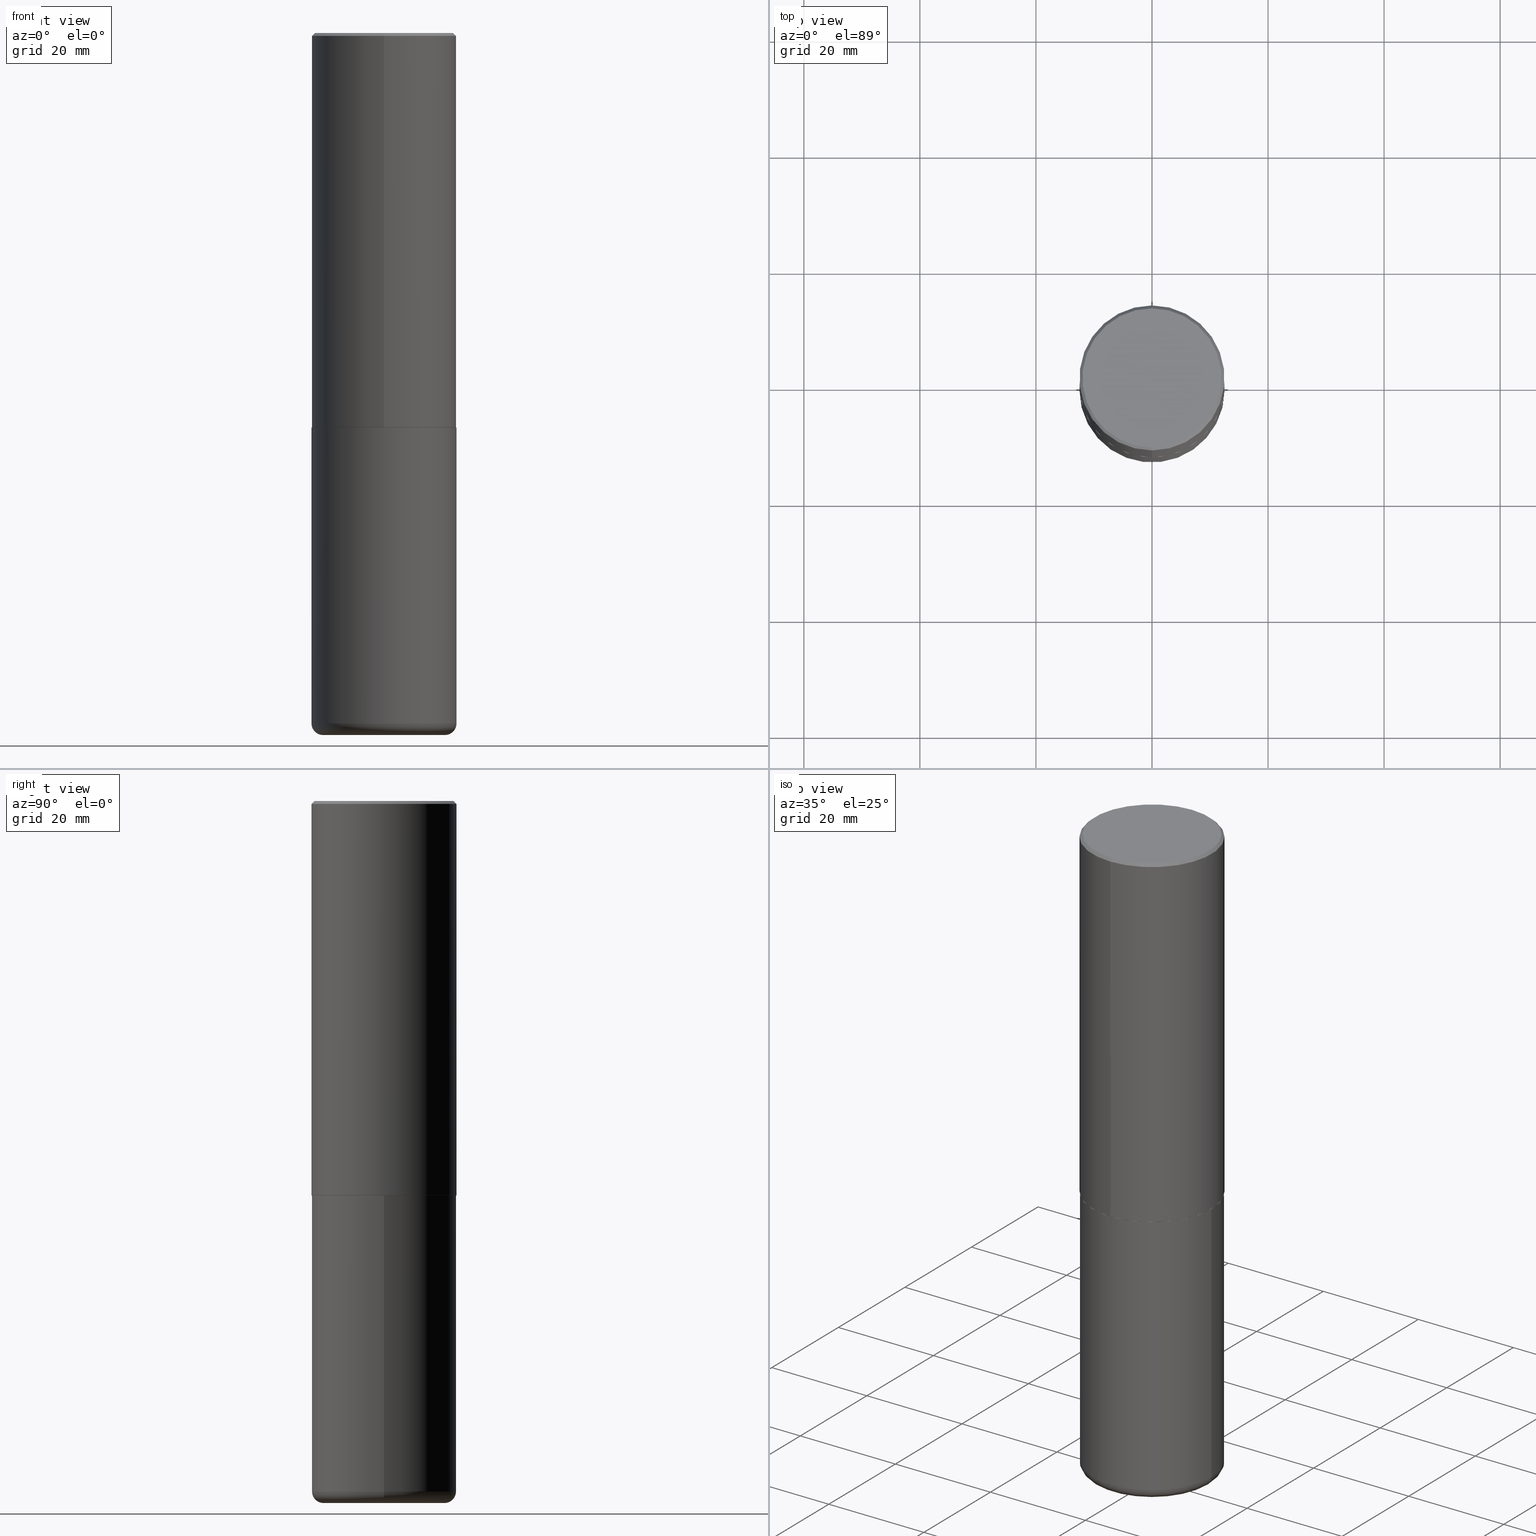
[diagram: canonical four-view strip — front | top / right | iso, engineering-drawing reading convention]
A machine part, canonical four-view strip (front | top / right | iso — engineering-drawing reading convention). The complete STEP part file that produces these views, byte-faithful:
ISO-10303-21;
HEADER;
FILE_DESCRIPTION (( 'STEP AP203' ),
    '1' );
FILE_NAME ('47144.STEP',
    '2024-03-05T23:27:42',
    ( '' ),
    ( '' ),
    'SwSTEP 2.0',
    'SolidWorks 2023',
    '' );
FILE_SCHEMA (( 'CONFIG_CONTROL_DESIGN' ));
ENDSEC;

DATA;
#1 = LINE ( 'NONE', #129, #92 ) ;
#2 = PERSON ( 'UNSPECIFIED', 'UNSPECIFIED', 'UNSPECIFIED', ('UNSPECIFIED'), ('UNSPECIFIED'), ('UNSPECIFIED') ) ;
#3 = DIRECTION ( 'NONE',  ( -2.445468806185136597E-29, 3.491481338843145583E-15, 1.000000000000000000 ) ) ;
#4 = VECTOR ( 'NONE', #287, 39.37007874015748143 ) ;
#5 = ORIENTED_EDGE ( 'NONE', *, *, #20, .T. ) ;
#6 = ADVANCED_FACE ( 'NONE', ( #90 ), #86, .T. ) ;
#7 = ORIENTED_EDGE ( 'NONE', *, *, #257, .F. ) ;
#8 = ORIENTED_EDGE ( 'NONE', *, *, #114, .F. ) ;
#9 = CLOSED_SHELL ( 'NONE', ( #153, #408, #75, #6, #69, #162, #299, #197 ) ) ;
#10 = AXIS2_PLACEMENT_3D ( 'NONE', #203, #330, #230 ) ;
#11 = DIRECTION ( 'NONE',  ( -6.982962677686265922E-15, -1.000000000000000000, 3.489119658767506053E-15 ) ) ;
#12 = APPROVAL ( #312, 'UNSPECIFIED' ) ;
#13 = ORIENTED_EDGE ( 'NONE', *, *, #227, .F. ) ;
#14 = MECHANICAL_CONTEXT ( 'NONE', #243, 'mechanical' ) ;
#15 = ORIENTED_EDGE ( 'NONE', *, *, #257, .T. ) ;
#16 = PERSON_AND_ORGANIZATION ( #2, #34 ) ;
#17 = CARTESIAN_POINT ( 'NONE',  ( 0.4134499999999999287, -1.924504513970340634E-14, -4.685099999999999376 ) ) ;
#18 = AXIS2_PLACEMENT_3D ( 'NONE', #94, #351, #228 ) ;
#19 = DIRECTION ( 'NONE',  ( -6.982962677686265922E-15, -1.000000000000000000, 3.486624039460257331E-15 ) ) ;
#20 = EDGE_CURVE ( 'NONE', #264, #209, #329, .T. ) ;
#21 = DATE_AND_TIME ( #310, #336 ) ;
#22 = LINE ( 'NONE', #91, #33 ) ;
#23 = PERSON_AND_ORGANIZATION_ROLE ( 'creator' ) ;
#24 = EDGE_LOOP ( 'NONE', ( #116, #372 ) ) ;
#25 = DATE_AND_TIME ( #380, #26 ) ;
#26 = LOCAL_TIME ( 18, 27, 42.00000000000000000, #147 ) ;
#27 = DIRECTION ( 'NONE',  ( 2.438088387897960049E-29, -3.491481338843145188E-15, -1.000000000000000000 ) ) ;
#28 = EDGE_CURVE ( 'NONE', #404, #135, #84, .T. ) ;
#29 = DIRECTION ( 'NONE',  ( 6.982962677686265922E-15, 1.000000000000000000, -3.489119658767506053E-15 ) ) ;
#30 = CARTESIAN_POINT ( 'NONE',  ( 3.493383360364598263E-15, 0.4911499999999905941, -2.677200000000000468 ) ) ;
#31 = EDGE_CURVE ( 'NONE', #202, #204, #22, .T. ) ;
#32 = DIRECTION ( 'NONE',  ( 1.000000000000000000, -6.982962677686265922E-15, 0.000000000000000000 ) ) ;
#33 = VECTOR ( 'NONE', #308, 39.37007874015748143 ) ;
#34 = ORGANIZATION ( 'UNSPECIFIED', 'UNSPECIFIED', '' ) ;
#35 = CARTESIAN_POINT ( 'NONE',  ( 6.551424198677227885E-29, -9.341071150452363547E-15, -2.677199999999999136 ) ) ;
#36 = DIRECTION ( 'NONE',  ( 1.000000000000000000, -6.982962677686261977E-15, 0.000000000000000000 ) ) ;
#37 = DIRECTION ( 'NONE',  ( -2.445468806185136597E-29, 3.491481338843145583E-15, 1.000000000000000000 ) ) ;
#38 = AXIS2_PLACEMENT_3D ( 'NONE', #64, #166, #130 ) ;
#39 = EDGE_CURVE ( 'NONE', #71, #264, #352, .T. ) ;
#40 = ORIENTED_EDGE ( 'NONE', *, *, #31, .T. ) ;
#41 = LINE ( 'NONE', #77, #406 ) ;
#42 = EDGE_LOOP ( 'NONE', ( #13, #309, #78, #181 ) ) ;
#43 = CC_DESIGN_PERSON_AND_ORGANIZATION_ASSIGNMENT ( #16, #159, ( #124 ) ) ;
#44 = DIRECTION ( 'NONE',  ( -2.447117958567619178E-29, 3.489119658767506053E-15, 1.000000000000000000 ) ) ;
#45 = ORIENTED_EDGE ( 'NONE', *, *, #185, .T. ) ;
#46 = AXIS2_PLACEMENT_3D ( 'NONE', #350, #413, #115 ) ;
#47 = LOCAL_TIME ( 18, 27, 42.00000000000000000, #82 ) ;
#48 = DIRECTION ( 'NONE',  ( 1.000000000000000000, 0.000000000000000000, 0.000000000000000000 ) ) ;
#49 = ORIENTED_EDGE ( 'NONE', *, *, #418, .T. ) ;
#50 = PERSON_AND_ORGANIZATION ( #2, #34 ) ;
#51 = DIRECTION ( 'NONE',  ( 2.447117958567619178E-29, -3.489119658767506053E-15, -1.000000000000000000 ) ) ;
#52 = CARTESIAN_POINT ( 'NONE',  ( -3.376394089603257868E-15, -0.4921499999999999764, -0.01999999999999839059 ) ) ;
#53 = EDGE_CURVE ( 'NONE', #204, #135, #412, .T. ) ;
#54 = CIRCLE ( 'NONE', #169, 0.4921500000000002539 ) ;
#55 = FACE_OUTER_BOUND ( 'NONE', #24, .T. ) ;
#56 = PERSON_AND_ORGANIZATION ( #2, #34 ) ;
#57 = CARTESIAN_POINT ( 'NONE',  ( 7.253733539357195705E-29, -2.292802777390881521E-14, -4.763799999999999812 ) ) ;
#58 = PERSON_AND_ORGANIZATION ( #2, #34 ) ;
#59 = FACE_OUTER_BOUND ( 'NONE', #384, .T. ) ;
#60 = AXIS2_PLACEMENT_3D ( 'NONE', #391, #414, #32 ) ;
#61 = CARTESIAN_POINT ( 'NONE',  ( 3.366835455046432084E-15, 0.4721499999999996255, -1.422271752159468089E-15 ) ) ;
#62 = DIRECTION ( 'NONE',  ( -2.445468806185136597E-29, 3.491481338843145583E-15, 1.000000000000000000 ) ) ;
#63 = EDGE_CURVE ( 'NONE', #135, #138, #97, .T. ) ;
#64 = CARTESIAN_POINT ( 'NONE',  ( 0.000000000000000000, 0.000000000000000000, 0.000000000000000000 ) ) ;
#65 = AXIS2_PLACEMENT_3D ( 'NONE', #290, #168, #99 ) ;
#66 = PLANE ( 'NONE',  #191 ) ;
#67 = CLOSED_SHELL ( 'NONE', ( #83, #355, #89, #178, #238, #131 ) ) ;
#68 = CARTESIAN_POINT ( 'NONE',  ( -5.508856381705404921E-45, 7.854569916190676353E-31, 2.251160947276086573E-16 ) ) ;
#69 = ADVANCED_FACE ( 'NONE', ( #407 ), #251, .T. ) ;
#70 = LINE ( 'NONE', #102, #353 ) ;
#71 = VERTEX_POINT ( 'NONE', #151 ) ;
#72 = AXIS2_PLACEMENT_3D ( 'NONE', #322, #320, #36 ) ;
#73 = CARTESIAN_POINT ( 'NONE',  ( -3.307789109625541747E-15, -0.4721499999999996255, 1.872503941614685503E-15 ) ) ;
#74 = ORIENTED_EDGE ( 'NONE', *, *, #127, .F. ) ;
#75 = ADVANCED_FACE ( 'NONE', ( #279 ), #405, .T. ) ;
#76 = ORIENTED_EDGE ( 'NONE', *, *, #332, .F. ) ;
#77 = CARTESIAN_POINT ( 'NONE',  ( 3.436665081823295777E-15, 0.4921499999999998098, -0.02000000000000182188 ) ) ;
#78 = ORIENTED_EDGE ( 'NONE', *, *, #63, .T. ) ;
#79 = APPROVAL_PERSON_ORGANIZATION ( #56, #221, #219 ) ;
#80 = PERSON_AND_ORGANIZATION_ROLE ( 'creator' ) ;
#81 = ORIENTED_EDGE ( 'NONE', *, *, #167, .F. ) ;
#82 = COORDINATED_UNIVERSAL_TIME_OFFSET ( 5, 0, .BEHIND. ) ;
#83 = ADVANCED_FACE ( 'NONE', ( #59 ), #409, .T. ) ;
#84 = LINE ( 'NONE', #52, #250 ) ;
#85 = CARTESIAN_POINT ( 'NONE',  ( 0.000000000000000000, 0.000000000000000000, 0.000000000000000000 ) ) ;
#86 = CONICAL_SURFACE ( 'NONE', #268, 0.4921499999999999209, 0.7853981633974466137 ) ;
#87 = APPROVAL_PERSON_ORGANIZATION ( #286, #321, #410 ) ;
#88 = FACE_OUTER_BOUND ( 'NONE', #376, .T. ) ;
#89 = ADVANCED_FACE ( 'NONE', ( #55 ), #316, .F. ) ;
#90 = FACE_OUTER_BOUND ( 'NONE', #338, .T. ) ;
#91 = CARTESIAN_POINT ( 'NONE',  ( -3.429682119145543892E-15, -0.4911500000000093014, -2.677199999999997360 ) ) ;
#92 = VECTOR ( 'NONE', #165, 39.37007874015748143 ) ;
#93 = AXIS2_PLACEMENT_3D ( 'NONE', #367, #400, #11 ) ;
#94 = CARTESIAN_POINT ( 'NONE',  ( 6.547009087918846705E-29, -9.347393840350866318E-15, -2.677199999999999580 ) ) ;
#95 = DIRECTION ( 'NONE',  ( -6.982962677686265922E-15, -1.000000000000000000, 3.337287582609300506E-15 ) ) ;
#96 = DIRECTION ( 'NONE',  ( -6.982962677686265922E-15, -1.000000000000000000, 3.337287582609300506E-15 ) ) ;
#97 = CIRCLE ( 'NONE', #126, 0.4921499999999999209 ) ;
#98 = FACE_OUTER_BOUND ( 'NONE', #222, .T. ) ;
#99 = DIRECTION ( 'NONE',  ( -6.982962677686265922E-15, -1.000000000000000000, 3.337287582609300506E-15 ) ) ;
#100 = CARTESIAN_POINT ( 'NONE',  ( -0.4921499999999999764, 3.496936074043332897E-15, -2.420853904668951509E-29 ) ) ;
#101 = EDGE_LOOP ( 'NONE', ( #111, #273 ) ) ;
#102 = CARTESIAN_POINT ( 'NONE',  ( 3.489830646685796970E-15, 0.4911499999999905941, -2.677200000000000468 ) ) ;
#103 = CC_DESIGN_PERSON_AND_ORGANIZATION_ASSIGNMENT ( #50, #80, ( #261 ) ) ;
#104 = EDGE_LOOP ( 'NONE', ( #368, #145, #74, #156 ) ) ;
#105 = AXIS2_PLACEMENT_3D ( 'NONE', #57, #188, #253 ) ;
#106 = DIRECTION ( 'NONE',  ( 1.000000000000000000, -6.982962677686263555E-15, 4.883557194083111219E-29 ) ) ;
#107 = ORIENTED_EDGE ( 'NONE', *, *, #53, .F. ) ;
#108 =( NAMED_UNIT ( * ) PLANE_ANGLE_UNIT ( ) SI_UNIT ( $, .RADIAN. ) );
#109 = ORIENTED_EDGE ( 'NONE', *, *, #63, .F. ) ;
#110 = APPROVAL_STATUS ( 'not_yet_approved' ) ;
#111 = ORIENTED_EDGE ( 'NONE', *, *, #327, .F. ) ;
#112 = AXIS2_PLACEMENT_3D ( 'NONE', #17, #281, #148 ) ;
#113 = AXIS2_PLACEMENT_3D ( 'NONE', #394, #37, #106 ) ;
#114 = EDGE_CURVE ( 'NONE', #143, #404, #260, .T. ) ;
#115 = DIRECTION ( 'NONE',  ( -6.982962677686265922E-15, -1.000000000000000000, 3.489119658767506053E-15 ) ) ;
#116 = ORIENTED_EDGE ( 'NONE', *, *, #271, .T. ) ;
#117 = DIRECTION ( 'NONE',  ( 2.447117958567619178E-29, -3.489119658767506053E-15, -1.000000000000000000 ) ) ;
#118 = CIRCLE ( 'NONE', #224, 0.4911499999999999755 ) ;
#119 = AXIS2_PLACEMENT_3D ( 'NONE', #207, #337, #48 ) ;
#120 = AXIS2_PLACEMENT_3D ( 'NONE', #266, #403, #396 ) ;
#121 = DATE_TIME_ROLE ( 'creation_date' ) ;
#122 = DIRECTION ( 'NONE',  ( 1.000000000000000000, -6.982962677686265922E-15, 0.000000000000000000 ) ) ;
#123 = DIRECTION ( 'NONE',  ( 6.982962677686265922E-15, 1.000000000000000000, -3.486624039460257331E-15 ) ) ;
#124 = PRODUCT ( '47144', '47144', '', ( #14 ) ) ;
#125 = CARTESIAN_POINT ( 'NONE',  ( 1.145726590385798145E-28, -1.635793922061402197E-14, -4.685099999999999376 ) ) ;
#126 = AXIS2_PLACEMENT_3D ( 'NONE', #277, #182, #19 ) ;
#127 = EDGE_CURVE ( 'NONE', #204, #174, #54, .T. ) ;
#128 = CYLINDRICAL_SURFACE ( 'NONE', #38, 0.4921499999999999764 ) ;
#129 = CARTESIAN_POINT ( 'NONE',  ( 3.496936074043333291E-15, 0.4921500000000000874, -1.717170240062428491E-15 ) ) ;
#130 = DIRECTION ( 'NONE',  ( 1.000000000000000000, -6.982962677686265922E-15, 4.876176775795935793E-29 ) ) ;
#131 = ADVANCED_FACE ( 'NONE', ( #88 ), #348, .T. ) ;
#132 = TOROIDAL_SURFACE ( 'NONE', #398, 0.4134499999999999287, 0.07870000000000024198 ) ;
#133 = DIRECTION ( 'NONE',  ( 1.000000000000000000, -6.982962677686265922E-15, 0.000000000000000000 ) ) ;
#134 = DIRECTION ( 'NONE',  ( -2.445468806185136877E-29, 3.491481338843145188E-15, 1.000000000000000000 ) ) ;
#135 = VERTEX_POINT ( 'NONE', #258 ) ;
#136 = EDGE_CURVE ( 'NONE', #244, #331, #323, .T. ) ;
#137 = CARTESIAN_POINT ( 'NONE',  ( 4.894235917135264524E-31, -6.978239317535049922E-17, -0.02000000000000010797 ) ) ;
#138 = VERTEX_POINT ( 'NONE', #225 ) ;
#139 =( LENGTH_UNIT ( ) NAMED_UNIT ( * ) SI_UNIT ( $, .METRE. ) );
#140 = EDGE_LOOP ( 'NONE', ( #377, #15, #370, #236 ) ) ;
#141 = AXIS2_PLACEMENT_3D ( 'NONE', #85, #283, #190 ) ;
#142 = DIRECTION ( 'NONE',  ( -6.982962677686265922E-15, -1.000000000000000000, 3.337287582609300506E-15 ) ) ;
#143 = VERTEX_POINT ( 'NONE', #61 ) ;
#144 = DIRECTION ( 'NONE',  ( -2.447117958567619178E-29, 3.489119658767506053E-15, 1.000000000000000000 ) ) ;
#145 = ORIENTED_EDGE ( 'NONE', *, *, #373, .T. ) ;
#146 = PRODUCT_RELATED_PRODUCT_CATEGORY ( 'detail', '', ( #124 ) ) ;
#147 = COORDINATED_UNIVERSAL_TIME_OFFSET ( 5, 0, .BEHIND. ) ;
#148 = DIRECTION ( 'NONE',  ( 1.000000000000000000, -6.982962677686273810E-15, 0.000000000000000000 ) ) ;
#149 = AXIS2_PLACEMENT_3D ( 'NONE', #68, #393, #229 ) ;
#150 = CC_DESIGN_APPROVAL ( #12, ( #390 ) ) ;
#151 = CARTESIAN_POINT ( 'NONE',  ( 0.4134499999999999287, -1.951982472107036283E-14, -4.763799999999999812 ) ) ;
#152 = APPROVAL_ROLE ( '' ) ;
#153 = ADVANCED_FACE ( 'NONE', ( #358 ), #416, .T. ) ;
#154 = CARTESIAN_POINT ( 'NONE',  ( 1.145726590385798145E-28, -1.635793922061402197E-14, -4.685099999999999376 ) ) ;
#155 = COORDINATED_UNIVERSAL_TIME_OFFSET ( 5, 0, .BEHIND. ) ;
#156 = ORIENTED_EDGE ( 'NONE', *, *, #31, .F. ) ;
#157 = CIRCLE ( 'NONE', #149, 0.4721499999999996255 ) ;
#158 = LOCAL_TIME ( 18, 27, 42.00000000000000000, #349 ) ;
#159 = PERSON_AND_ORGANIZATION_ROLE ( 'design_owner' ) ;
#160 = DIRECTION ( 'NONE',  ( -6.982962677686265922E-15, -1.000000000000000000, 3.489119658767506053E-15 ) ) ;
#161 = FACE_OUTER_BOUND ( 'NONE', #140, .T. ) ;
#162 = ADVANCED_FACE ( 'NONE', ( #196 ), #284, .T. ) ;
#163 = PLANE ( 'NONE',  #183 ) ;
#164 = CIRCLE ( 'NONE', #10, 0.4134499999999999287 ) ;
#165 = DIRECTION ( 'NONE',  ( -2.447117958567619178E-29, 3.489119658767506053E-15, 1.000000000000000000 ) ) ;
#166 = DIRECTION ( 'NONE',  ( -2.445468806185136597E-29, 3.491481338843145583E-15, 1.000000000000000000 ) ) ;
#167 = EDGE_CURVE ( 'NONE', #174, #138, #1, .T. ) ;
#168 = DIRECTION ( 'NONE',  ( -2.447117958567619178E-29, 3.489119658767506053E-15, 1.000000000000000000 ) ) ;
#169 = AXIS2_PLACEMENT_3D ( 'NONE', #187, #311, #381 ) ;
#170 = ORIENTED_EDGE ( 'NONE', *, *, #136, .F. ) ;
#171 = ORIENTED_EDGE ( 'NONE', *, *, #402, .T. ) ;
#172 = EDGE_CURVE ( 'NONE', #264, #331, #193, .T. ) ;
#173 = LENGTH_MEASURE_WITH_UNIT ( LENGTH_MEASURE( 0.02539999999999999897 ), #139 );
#174 = VERTEX_POINT ( 'NONE', #354 ) ;
#175 = AXIS2_PLACEMENT_3D ( 'NONE', #154, #342, #122 ) ;
#176 = VERTEX_POINT ( 'NONE', #319 ) ;
#177 = DIRECTION ( 'NONE',  ( -6.982962677686265922E-15, -1.000000000000000000, 3.486624039460257331E-15 ) ) ;
#178 = ADVANCED_FACE ( 'NONE', ( #415 ), #128, .T. ) ;
#179 = ORIENTED_EDGE ( 'NONE', *, *, #127, .T. ) ;
#180 = PERSON_AND_ORGANIZATION ( #2, #34 ) ;
#181 = ORIENTED_EDGE ( 'NONE', *, *, #402, .F. ) ;
#182 = DIRECTION ( 'NONE',  ( -2.447117958567619178E-29, 3.489119658767506053E-15, 1.000000000000000000 ) ) ;
#183 = AXIS2_PLACEMENT_3D ( 'NONE', #417, #328, #334 ) ;
#184 = AXIS2_PLACEMENT_3D ( 'NONE', #137, #44, #177 ) ;
#185 = EDGE_CURVE ( 'NONE', #209, #264, #223, .T. ) ;
#186 = APPLICATION_PROTOCOL_DEFINITION ( 'international standard', 'config_control_design', 1994, #265 ) ;
#187 = CARTESIAN_POINT ( 'NONE',  ( 6.548977080718662055E-29, -9.337582030793598206E-15, -2.676199999999999690 ) ) ;
#188 = DIRECTION ( 'NONE',  ( 2.438088387897960049E-29, -3.491481338843145188E-15, -1.000000000000000000 ) ) ;
#189 = CALENDAR_DATE ( 2024, 5, 3 ) ;
#190 = DIRECTION ( 'NONE',  ( 1.000000000000000000, -6.982962677686265922E-15, 4.876176775795935793E-29 ) ) ;
#191 = AXIS2_PLACEMENT_3D ( 'NONE', #194, #256, #29 ) ;
#192 = PRODUCT_DEFINITION_SHAPE ( 'NONE', 'NONE',  #390 ) ;
#193 = LINE ( 'NONE', #259, #343 ) ;
#194 = CARTESIAN_POINT ( 'NONE',  ( 3.297005828269567997E-15, 0.4721499999999996255, -1.534829799523272196E-15 ) ) ;
#195 = DESIGN_CONTEXT ( 'detailed design', #265, 'design' ) ;
#196 = FACE_OUTER_BOUND ( 'NONE', #298, .T. ) ;
#197 = ADVANCED_FACE ( 'NONE', ( #98 ), #66, .F. ) ;
#198 = CIRCLE ( 'NONE', #392, 0.4911499999999999755 ) ;
#199 = CARTESIAN_POINT ( 'NONE',  ( 6.551424198677227885E-29, -9.341071150452363547E-15, -2.677199999999999136 ) ) ;
#200 = ORIENTED_EDGE ( 'NONE', *, *, #114, .T. ) ;
#201 = DIRECTION ( 'NONE',  ( 5.024295867790635654E-15, 0.7071067811869121700, 0.7071067811861828645 ) ) ;
#202 = VERTEX_POINT ( 'NONE', #388 ) ;
#203 = CARTESIAN_POINT ( 'NONE',  ( 1.164972429890475522E-28, -1.663271880198097847E-14, -4.763799999999999812 ) ) ;
#204 = VERTEX_POINT ( 'NONE', #254 ) ;
#205 = APPLICATION_PROTOCOL_DEFINITION ( 'international standard', 'config_control_design', 1994, #243 ) ;
#206 = ORIENTED_EDGE ( 'NONE', *, *, #20, .F. ) ;
#207 = CARTESIAN_POINT ( 'NONE',  ( 0.000000000000000000, 0.000000000000000000, 0.000000000000000000 ) ) ;
#208 = AXIS2_PLACEMENT_3D ( 'NONE', #247, #27, #249 ) ;
#209 = VERTEX_POINT ( 'NONE', #262 ) ;
#210 = DATE_AND_TIME ( #341, #158 ) ;
#211 = ORIENTED_EDGE ( 'NONE', *, *, #332, .T. ) ;
#212 = APPROVAL_STATUS ( 'not_yet_approved' ) ;
#213 = DIRECTION ( 'NONE',  ( -4.851104656540954809E-15, -0.7071067811865486830, -0.7071067811865462405 ) ) ;
#214 = CARTESIAN_POINT ( 'NONE',  ( -5.508856381705404921E-45, 7.854569916190676353E-31, 2.251160947276086573E-16 ) ) ;
#215 = AXIS2_PLACEMENT_3D ( 'NONE', #411, #117, #123 ) ;
#216 =( GEOMETRIC_REPRESENTATION_CONTEXT ( 3 ) GLOBAL_UNCERTAINTY_ASSIGNED_CONTEXT ( ( #288 ) ) GLOBAL_UNIT_ASSIGNED_CONTEXT ( ( #303, #108, #269 ) ) REPRESENTATION_CONTEXT ( 'NONE', 'WORKASPACE' ) );
#217 = PERSON_AND_ORGANIZATION_ROLE ( 'classification_officer' ) ;
#218 = CARTESIAN_POINT ( 'NONE',  ( 4.894235917135264524E-31, -6.978239317535049922E-17, -0.02000000000000010797 ) ) ;
#219 = APPROVAL_ROLE ( '' ) ;
#220 = CARTESIAN_POINT ( 'NONE',  ( -3.436665081823296565E-15, -0.4921500000000000874, 1.717170240062428491E-15 ) ) ;
#221 = APPROVAL ( #212, 'UNSPECIFIED' ) ;
#222 = EDGE_LOOP ( 'NONE', ( #200, #241 ) ) ;
#223 = CIRCLE ( 'NONE', #60, 0.4921499999999999764 ) ;
#224 = AXIS2_PLACEMENT_3D ( 'NONE', #371, #144, #142 ) ;
#225 = CARTESIAN_POINT ( 'NONE',  ( 3.436665081823295777E-15, 0.4921499999999998098, -0.02000000000000182188 ) ) ;
#226 = DIRECTION ( 'NONE',  ( 1.000000000000000000, -6.982962677686263555E-15, 4.883557194083111219E-29 ) ) ;
#227 = EDGE_CURVE ( 'NONE', #404, #143, #157, .T. ) ;
#228 = DIRECTION ( 'NONE',  ( 1.000000000000000000, -6.982962677686265922E-15, 0.000000000000000000 ) ) ;
#229 = DIRECTION ( 'NONE',  ( -6.982962677686265922E-15, -1.000000000000000000, 3.489119658767506053E-15 ) ) ;
#230 = DIRECTION ( 'NONE',  ( 1.000000000000000000, -6.982962677686261977E-15, 0.000000000000000000 ) ) ;
#231 = CYLINDRICAL_SURFACE ( 'NONE', #93, 0.4921500000000000874 ) ;
#232 = EDGE_CURVE ( 'NONE', #272, #202, #198, .T. ) ;
#233 = ORIENTED_EDGE ( 'NONE', *, *, #373, .F. ) ;
#234 = FACE_OUTER_BOUND ( 'NONE', #401, .T. ) ;
#235 = SECURITY_CLASSIFICATION ( '', '', #248 ) ;
#236 = ORIENTED_EDGE ( 'NONE', *, *, #185, .F. ) ;
#237 = ORIENTED_EDGE ( 'NONE', *, *, #167, .T. ) ;
#238 = ADVANCED_FACE ( 'NONE', ( #161 ), #132, .T. ) ;
#239 = ORIENTED_EDGE ( 'NONE', *, *, #172, .T. ) ;
#240 = PERSON_AND_ORGANIZATION ( #2, #34 ) ;
#241 = ORIENTED_EDGE ( 'NONE', *, *, #227, .T. ) ;
#242 = PERSON_AND_ORGANIZATION ( #2, #34 ) ;
#243 = APPLICATION_CONTEXT ( 'configuration controlled 3d designs of mechanical parts and assemblies' ) ;
#244 = VERTEX_POINT ( 'NONE', #389 ) ;
#245 = COORDINATED_UNIVERSAL_TIME_OFFSET ( 5, 0, .BEHIND. ) ;
#246 = CC_DESIGN_PERSON_AND_ORGANIZATION_ASSIGNMENT ( #240, #374, ( #261 ) ) ;
#247 = CARTESIAN_POINT ( 'NONE',  ( 6.547009087918846705E-29, -9.347393840350866318E-15, -2.677199999999999580 ) ) ;
#248 = SECURITY_CLASSIFICATION_LEVEL ( 'unclassified' ) ;
#249 = DIRECTION ( 'NONE',  ( -1.000000000000000000, 6.982962677686265922E-15, -4.876176775795935793E-29 ) ) ;
#250 = VECTOR ( 'NONE', #213, 39.37007874015748854 ) ;
#251 = CYLINDRICAL_SURFACE ( 'NONE', #46, 0.4921500000000000874 ) ;
#252 = EDGE_CURVE ( 'NONE', #176, #209, #296, .T. ) ;
#253 = DIRECTION ( 'NONE',  ( -1.000000000000000000, 6.982962677686265922E-15, -4.876176775795935793E-29 ) ) ;
#254 = CARTESIAN_POINT ( 'NONE',  ( -3.436665081823232273E-15, -0.4921500000000095798, -2.676199999999997914 ) ) ;
#255 = AXIS2_PLACEMENT_3D ( 'NONE', #362, #325, #326 ) ;
#256 = DIRECTION ( 'NONE',  ( 2.447117958567618897E-29, -3.489119658767506053E-15, -1.000000000000000000 ) ) ;
#257 = EDGE_CURVE ( 'NONE', #176, #71, #387, .T. ) ;
#258 = CARTESIAN_POINT ( 'NONE',  ( -3.376394089603257868E-15, -0.4921499999999999764, -0.01999999999999839059 ) ) ;
#259 = CARTESIAN_POINT ( 'NONE',  ( 0.4921499999999999764, -3.436665081823295777E-15, 2.399810400207969603E-29 ) ) ;
#260 = CIRCLE ( 'NONE', #302, 0.4721499999999996255 ) ;
#261 = PRODUCT_DEFINITION_FORMATION_WITH_SPECIFIED_SOURCE ( 'ANY', '', #124, .NOT_KNOWN. ) ;
#262 = CARTESIAN_POINT ( 'NONE',  ( -0.4921500000000000874, -1.286100314657068829E-14, -4.685099999999999376 ) ) ;
#263 = LINE ( 'NONE', #100, #304 ) ;
#264 = VERTEX_POINT ( 'NONE', #294 ) ;
#265 = APPLICATION_CONTEXT ( 'configuration controlled 3d designs of mechanical parts and assemblies' ) ;
#266 = CARTESIAN_POINT ( 'NONE',  ( 6.548977080718662055E-29, -9.337582030793598206E-15, -2.676199999999999690 ) ) ;
#267 = EDGE_LOOP ( 'NONE', ( #49, #335, #206, #306 ) ) ;
#268 = AXIS2_PLACEMENT_3D ( 'NONE', #218, #51, #383 ) ;
#269 =( NAMED_UNIT ( * ) SI_UNIT ( $, .STERADIAN. ) SOLID_ANGLE_UNIT ( ) );
#270 = APPROVAL_PERSON_ORGANIZATION ( #58, #12, #152 ) ;
#271 = EDGE_CURVE ( 'NONE', #331, #244, #365, .T. ) ;
#272 = VERTEX_POINT ( 'NONE', #30 ) ;
#273 = ORIENTED_EDGE ( 'NONE', *, *, #232, .F. ) ;
#274 = CARTESIAN_POINT ( 'NONE',  ( 0.4921499999999999764, -1.278405892217416209E-14, -2.677199999999999580 ) ) ;
#275 = EDGE_LOOP ( 'NONE', ( #76, #45, #239, #170 ) ) ;
#276 = APPROVAL_DATE_TIME ( #25, #12 ) ;
#277 = CARTESIAN_POINT ( 'NONE',  ( 4.894235917135264524E-31, -6.978239317535049922E-17, -0.02000000000000010797 ) ) ;
#278 = CIRCLE ( 'NONE', #120, 0.4921500000000002539 ) ;
#279 = FACE_OUTER_BOUND ( 'NONE', #42, .T. ) ;
#280 = APPROVAL_DATE_TIME ( #282, #321 ) ;
#281 = DIRECTION ( 'NONE',  ( -6.982962677686266711E-15, -1.000000000000000000, 3.491481338843145583E-15 ) ) ;
#282 = DATE_AND_TIME ( #189, #324 ) ;
#283 = DIRECTION ( 'NONE',  ( -2.445468806185136597E-29, 3.491481338843145583E-15, 1.000000000000000000 ) ) ;
#284 = CONICAL_SURFACE ( 'NONE', #65, 0.4911499999999999755, 0.7853981633979605359 ) ;
#285 = TOROIDAL_SURFACE ( 'NONE', #113, 0.4134499999999999287, 0.07870000000000024198 ) ;
#286 = PERSON_AND_ORGANIZATION ( #2, #34 ) ;
#287 = DIRECTION ( 'NONE',  ( -2.447117958567619178E-29, 3.489119658767506053E-15, 1.000000000000000000 ) ) ;
#288 = UNCERTAINTY_MEASURE_WITH_UNIT (LENGTH_MEASURE( 1.000000000000000082E-05 ), #303, 'distance_accuracy_value', 'NONE');
#289 = DIRECTION ( 'NONE',  ( -2.447117958567619178E-29, 3.489119658767506053E-15, 1.000000000000000000 ) ) ;
#290 = CARTESIAN_POINT ( 'NONE',  ( 6.551424198677227885E-29, -9.341071150452363547E-15, -2.677199999999999136 ) ) ;
#291 = FACE_OUTER_BOUND ( 'NONE', #101, .T. ) ;
#292 = ADVANCED_BREP_SHAPE_REPRESENTATION ( '47144', ( #356, #366, #119 ), #216 ) ;
#293 = DIRECTION ( 'NONE',  ( -2.447117958567619178E-29, 3.489119658767506053E-15, 1.000000000000000000 ) ) ;
#294 = CARTESIAN_POINT ( 'NONE',  ( 0.4921500000000000874, -1.979460430243731302E-14, -4.685099999999999376 ) ) ;
#295 = CC_DESIGN_PERSON_AND_ORGANIZATION_ASSIGNMENT ( #180, #23, ( #390 ) ) ;
#296 = CIRCLE ( 'NONE', #255, 0.07870000000000024198 ) ;
#297 = ORIENTED_EDGE ( 'NONE', *, *, #385, .F. ) ;
#298 = EDGE_LOOP ( 'NONE', ( #233, #378, #40, #297 ) ) ;
#299 = ADVANCED_FACE ( 'NONE', ( #291 ), #163, .F. ) ;
#300 = ORIENTED_EDGE ( 'NONE', *, *, #28, .F. ) ;
#301 = AXIS2_PLACEMENT_3D ( 'NONE', #386, #3, #133 ) ;
#302 = AXIS2_PLACEMENT_3D ( 'NONE', #214, #344, #160 ) ;
#303 =( CONVERSION_BASED_UNIT ( 'INCH', #173 ) LENGTH_UNIT ( ) NAMED_UNIT ( #375 ) );
#304 = VECTOR ( 'NONE', #134, 39.37007874015748143 ) ;
#305 = EDGE_LOOP ( 'NONE', ( #81, #397, #340, #314 ) ) ;
#306 = ORIENTED_EDGE ( 'NONE', *, *, #39, .F. ) ;
#307 = APPROVAL_DATE_TIME ( #210, #221 ) ;
#308 = DIRECTION ( 'NONE',  ( -4.937700262167077130E-15, -0.7071067811869072850, 0.7071067811861877495 ) ) ;
#309 = ORIENTED_EDGE ( 'NONE', *, *, #28, .T. ) ;
#310 = CALENDAR_DATE ( 2024, 5, 3 ) ;
#311 = DIRECTION ( 'NONE',  ( -2.447117958567619178E-29, 3.489119658767506053E-15, 1.000000000000000000 ) ) ;
#312 = APPROVAL_STATUS ( 'not_yet_approved' ) ;
#313 = CC_DESIGN_PERSON_AND_ORGANIZATION_ASSIGNMENT ( #242, #217, ( #235 ) ) ;
#314 = ORIENTED_EDGE ( 'NONE', *, *, #346, .F. ) ;
#315 = DATE_TIME_ROLE ( 'classification_date' ) ;
#316 = PLANE ( 'NONE',  #208 ) ;
#317 = AXIS2_PLACEMENT_3D ( 'NONE', #35, #293, #96 ) ;
#318 = CC_DESIGN_APPROVAL ( #221, ( #235 ) ) ;
#319 = CARTESIAN_POINT ( 'NONE',  ( -0.4134499999999999287, -1.327799150377576435E-14, -4.763799999999999812 ) ) ;
#320 = DIRECTION ( 'NONE',  ( -2.445468806185136597E-29, 3.491481338843145583E-15, 1.000000000000000000 ) ) ;
#321 = APPROVAL ( #110, 'UNSPECIFIED' ) ;
#322 = CARTESIAN_POINT ( 'NONE',  ( 1.164972429890475522E-28, -1.663271880198097847E-14, -4.763799999999999812 ) ) ;
#323 = CIRCLE ( 'NONE', #18, 0.4921499999999999764 ) ;
#324 = LOCAL_TIME ( 18, 27, 42.00000000000000000, #245 ) ;
#325 = DIRECTION ( 'NONE',  ( 7.105427357601001859E-15, 1.000000000000000000, -3.491481338843145583E-15 ) ) ;
#326 = DIRECTION ( 'NONE',  ( -1.000000000000000000, 7.105427357600995548E-15, 0.000000000000000000 ) ) ;
#327 = EDGE_CURVE ( 'NONE', #202, #272, #118, .T. ) ;
#328 = DIRECTION ( 'NONE',  ( -2.447117958567618897E-29, 3.489119658767506053E-15, 1.000000000000000000 ) ) ;
#329 = CIRCLE ( 'NONE', #175, 0.4921499999999999764 ) ;
#330 = DIRECTION ( 'NONE',  ( -2.445468806185136597E-29, 3.491481338843145583E-15, 1.000000000000000000 ) ) ;
#331 = VERTEX_POINT ( 'NONE', #274 ) ;
#332 = EDGE_CURVE ( 'NONE', #209, #244, #263, .T. ) ;
#333 = ORIENTED_EDGE ( 'NONE', *, *, #172, .F. ) ;
#334 = DIRECTION ( 'NONE',  ( -6.982962677686265922E-15, -1.000000000000000000, 3.489119658767506053E-15 ) ) ;
#335 = ORIENTED_EDGE ( 'NONE', *, *, #252, .T. ) ;
#336 = LOCAL_TIME ( 18, 27, 42.00000000000000000, #155 ) ;
#337 = DIRECTION ( 'NONE',  ( 0.000000000000000000, 0.000000000000000000, 1.000000000000000000 ) ) ;
#338 = EDGE_LOOP ( 'NONE', ( #300, #8, #171, #399 ) ) ;
#339 = SHAPE_DEFINITION_REPRESENTATION ( #192, #292 ) ;
#340 = ORIENTED_EDGE ( 'NONE', *, *, #53, .T. ) ;
#341 = CALENDAR_DATE ( 2024, 5, 3 ) ;
#342 = DIRECTION ( 'NONE',  ( -2.445468806185136597E-29, 3.491481338843145583E-15, 1.000000000000000000 ) ) ;
#343 = VECTOR ( 'NONE', #357, 39.37007874015748143 ) ;
#344 = DIRECTION ( 'NONE',  ( -2.447117958567619178E-29, 3.489119658767506053E-15, 1.000000000000000000 ) ) ;
#345 = CC_DESIGN_SECURITY_CLASSIFICATION ( #235, ( #261 ) ) ;
#346 = EDGE_CURVE ( 'NONE', #138, #135, #360, .T. ) ;
#347 = DATE_AND_TIME ( #382, #47 ) ;
#348 = PLANE ( 'NONE',  #105 ) ;
#349 = COORDINATED_UNIVERSAL_TIME_OFFSET ( 5, 0, .BEHIND. ) ;
#350 = CARTESIAN_POINT ( 'NONE',  ( 0.000000000000000000, 0.000000000000000000, 0.000000000000000000 ) ) ;
#351 = DIRECTION ( 'NONE',  ( -2.445468806185136597E-29, 3.491481338843145583E-15, 1.000000000000000000 ) ) ;
#352 = CIRCLE ( 'NONE', #112, 0.07870000000000024198 ) ;
#353 = VECTOR ( 'NONE', #201, 39.37007874015748143 ) ;
#354 = CARTESIAN_POINT ( 'NONE',  ( 3.496936074043367212E-15, 0.4921499999999909281, -2.676200000000001467 ) ) ;
#355 = ADVANCED_FACE ( 'NONE', ( #369 ), #285, .T. ) ;
#356 = MANIFOLD_SOLID_BREP ( 'Body-Move/Copy2[1]', #67 ) ;
#357 = DIRECTION ( 'NONE',  ( -2.445468806185136877E-29, 3.491481338843145188E-15, 1.000000000000000000 ) ) ;
#358 = FACE_OUTER_BOUND ( 'NONE', #104, .T. ) ;
#359 = CC_DESIGN_APPROVAL ( #321, ( #261 ) ) ;
#360 = CIRCLE ( 'NONE', #184, 0.4921499999999999209 ) ;
#361 = CC_DESIGN_DATE_AND_TIME_ASSIGNMENT ( #347, #315, ( #235 ) ) ;
#362 = CARTESIAN_POINT ( 'NONE',  ( -0.4134499999999999287, -1.342020027961388708E-14, -4.685099999999999376 ) ) ;
#363 = DIRECTION ( 'NONE',  ( 4.937700262164538576E-15, 0.7071067811865437980, -0.7071067811865511255 ) ) ;
#364 = ORIENTED_EDGE ( 'NONE', *, *, #271, .F. ) ;
#365 = CIRCLE ( 'NONE', #301, 0.4921499999999999764 ) ;
#366 = MANIFOLD_SOLID_BREP ( 'Body-Move/Copy2[2]', #9 ) ;
#367 = CARTESIAN_POINT ( 'NONE',  ( 0.000000000000000000, 0.000000000000000000, 0.000000000000000000 ) ) ;
#368 = ORIENTED_EDGE ( 'NONE', *, *, #327, .T. ) ;
#369 = FACE_OUTER_BOUND ( 'NONE', #267, .T. ) ;
#370 = ORIENTED_EDGE ( 'NONE', *, *, #39, .T. ) ;
#371 = CARTESIAN_POINT ( 'NONE',  ( 6.551424198677227885E-29, -9.341071150452363547E-15, -2.677199999999999136 ) ) ;
#372 = ORIENTED_EDGE ( 'NONE', *, *, #136, .T. ) ;
#373 = EDGE_CURVE ( 'NONE', #272, #174, #70, .T. ) ;
#374 = PERSON_AND_ORGANIZATION_ROLE ( 'design_supplier' ) ;
#375 = DIMENSIONAL_EXPONENTS ( 1.000000000000000000, 0.000000000000000000, 0.000000000000000000, 0.000000000000000000, 0.000000000000000000, 0.000000000000000000, 0.000000000000000000 ) ;
#376 = EDGE_LOOP ( 'NONE', ( #395, #7 ) ) ;
#377 = ORIENTED_EDGE ( 'NONE', *, *, #252, .F. ) ;
#378 = ORIENTED_EDGE ( 'NONE', *, *, #232, .T. ) ;
#379 = CC_DESIGN_DATE_AND_TIME_ASSIGNMENT ( #21, #121, ( #390 ) ) ;
#380 = CALENDAR_DATE ( 2024, 5, 3 ) ;
#381 = DIRECTION ( 'NONE',  ( -6.982962677686266711E-15, -1.000000000000000000, 3.330506545156064285E-15 ) ) ;
#382 = CALENDAR_DATE ( 2024, 5, 3 ) ;
#383 = DIRECTION ( 'NONE',  ( 6.982962677686265922E-15, 1.000000000000000000, -3.486624039460257331E-15 ) ) ;
#384 = EDGE_LOOP ( 'NONE', ( #5, #211, #364, #333 ) ) ;
#385 = EDGE_CURVE ( 'NONE', #174, #204, #278, .T. ) ;
#386 = CARTESIAN_POINT ( 'NONE',  ( 6.547009087918846705E-29, -9.347393840350866318E-15, -2.677199999999999580 ) ) ;
#387 = CIRCLE ( 'NONE', #72, 0.4134499999999999287 ) ;
#388 = CARTESIAN_POINT ( 'NONE',  ( -3.429682119145543892E-15, -0.4911500000000093014, -2.677199999999997360 ) ) ;
#389 = CARTESIAN_POINT ( 'NONE',  ( -0.4921499999999999764, -9.355730456439111248E-15, -2.677199999999999580 ) ) ;
#390 = PRODUCT_DEFINITION ( 'UNKNOWN', '', #261, #195 ) ;
#391 = CARTESIAN_POINT ( 'NONE',  ( 1.145726590385798145E-28, -1.635793922061402197E-14, -4.685099999999999376 ) ) ;
#392 = AXIS2_PLACEMENT_3D ( 'NONE', #199, #289, #95 ) ;
#393 = DIRECTION ( 'NONE',  ( -2.447117958567619178E-29, 3.489119658767506053E-15, 1.000000000000000000 ) ) ;
#394 = CARTESIAN_POINT ( 'NONE',  ( 1.145726590385798145E-28, -1.635793922061402197E-14, -4.685099999999999376 ) ) ;
#395 = ORIENTED_EDGE ( 'NONE', *, *, #418, .F. ) ;
#396 = DIRECTION ( 'NONE',  ( -6.982962677686266711E-15, -1.000000000000000000, 3.330506545156064285E-15 ) ) ;
#397 = ORIENTED_EDGE ( 'NONE', *, *, #385, .T. ) ;
#398 = AXIS2_PLACEMENT_3D ( 'NONE', #125, #62, #226 ) ;
#399 = ORIENTED_EDGE ( 'NONE', *, *, #346, .T. ) ;
#400 = DIRECTION ( 'NONE',  ( -2.447117958567619178E-29, 3.489119658767506053E-15, 1.000000000000000000 ) ) ;
#401 = EDGE_LOOP ( 'NONE', ( #179, #237, #109, #107 ) ) ;
#402 = EDGE_CURVE ( 'NONE', #143, #138, #41, .T. ) ;
#403 = DIRECTION ( 'NONE',  ( -2.447117958567619178E-29, 3.489119658767506053E-15, 1.000000000000000000 ) ) ;
#404 = VERTEX_POINT ( 'NONE', #73 ) ;
#405 = CONICAL_SURFACE ( 'NONE', #215, 0.4921499999999999209, 0.7853981633974466137 ) ;
#406 = VECTOR ( 'NONE', #363, 39.37007874015748854 ) ;
#407 = FACE_OUTER_BOUND ( 'NONE', #305, .T. ) ;
#408 = ADVANCED_FACE ( 'NONE', ( #234 ), #231, .T. ) ;
#409 = CYLINDRICAL_SURFACE ( 'NONE', #141, 0.4921499999999999764 ) ;
#410 = APPROVAL_ROLE ( '' ) ;
#411 = CARTESIAN_POINT ( 'NONE',  ( 4.894235917135264524E-31, -6.978239317535049922E-17, -0.02000000000000010797 ) ) ;
#412 = LINE ( 'NONE', #220, #4 ) ;
#413 = DIRECTION ( 'NONE',  ( -2.447117958567619178E-29, 3.489119658767506053E-15, 1.000000000000000000 ) ) ;
#414 = DIRECTION ( 'NONE',  ( -2.445468806185136597E-29, 3.491481338843145583E-15, 1.000000000000000000 ) ) ;
#415 = FACE_OUTER_BOUND ( 'NONE', #275, .T. ) ;
#416 = CONICAL_SURFACE ( 'NONE', #317, 0.4911499999999999755, 0.7853981633979605359 ) ;
#417 = CARTESIAN_POINT ( 'NONE',  ( 6.551424198677229006E-29, -9.341071150452363547E-15, -2.677199999999999580 ) ) ;
#418 = EDGE_CURVE ( 'NONE', #71, #176, #164, .T. ) ;
ENDSEC;
END-ISO-10303-21;
